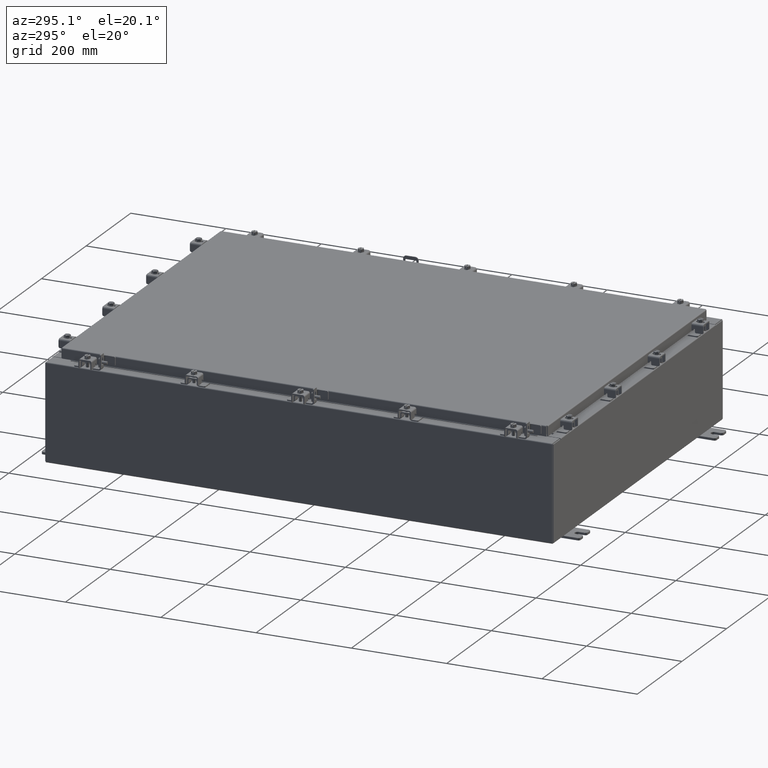
[diagram: clean part render]
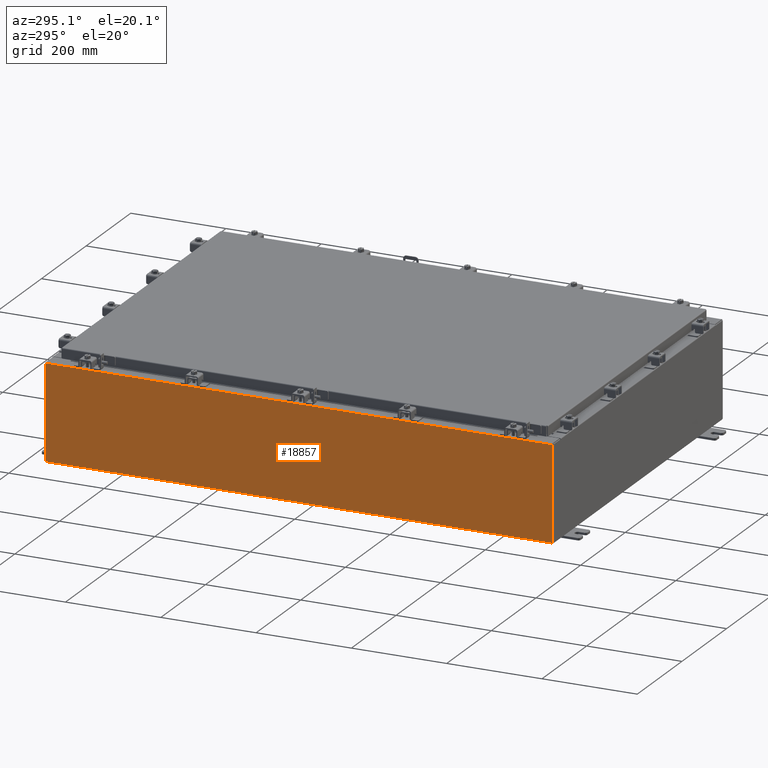
[diagram: same view with one face highlighted and labeled with its STEP entity id]
A machine part, auxiliary view. The second image highlights one B-rep face of the part: STEP entity #18857.
In plain terms, the highlighted planar face has unit normal (1, 0, 0).
Its self-contained STEP definition (entity closure, byte-faithful):
#142 = FACE_OUTER_BOUND ( 'NONE', #24469, .T. ) ;
#842 = ORIENTED_EDGE ( 'NONE', *, *, #21686, .F. ) ;
#1556 = VECTOR ( 'NONE', #2801, 39.37007874015748100 ) ;
#2446 = ORIENTED_EDGE ( 'NONE', *, *, #20738, .T. ) ;
#2730 = ORIENTED_EDGE ( 'NONE', *, *, #4179, .T. ) ;
#2801 = DIRECTION ( 'NONE',  ( 0.0000000000000000000, 1.000000000000000000, 0.0000000000000000000 ) ) ;
#3259 = CARTESIAN_POINT ( 'NONE',  ( -14.99999999999999800, -20.92529999999998600, 0.01299999999999984700 ) ) ;
#4179 = EDGE_CURVE ( 'NONE', #24232, #10203, #6911, .T. ) ;
#6911 = LINE ( 'NONE', #11517, #11355 ) ;
#8627 = VECTOR ( 'NONE', #13329, 39.37007874015748100 ) ;
#8753 = CARTESIAN_POINT ( 'NONE',  ( -14.99999999999999800, 0.0000000000000000000, -5.403395625144962100E-014 ) ) ;
#9155 = CARTESIAN_POINT ( 'NONE',  ( -15.00000000000002700, 20.92530000000000700, 7.837599999999999200 ) ) ;
#10203 = VERTEX_POINT ( 'NONE', #16707 ) ;
#10640 = DIRECTION ( 'NONE',  ( 3.584876173029202900E-015, 0.0000000000000000000, -1.000000000000000000 ) ) ;
#10777 = CARTESIAN_POINT ( 'NONE',  ( -14.99999999999999800, -20.92529999999999300, -5.403395625144962100E-014 ) ) ;
#11355 = VECTOR ( 'NONE', #19183, 39.37007874015748100 ) ;
#11517 = CARTESIAN_POINT ( 'NONE',  ( -14.99999999999999800, 20.92530000000000700, -5.403395625144962100E-014 ) ) ;
#13329 = DIRECTION ( 'NONE',  ( -0.0000000000000000000, 1.000000000000000000, -0.0000000000000000000 ) ) ;
#13589 = VECTOR ( 'NONE', #22174, 39.37007874015748100 ) ;
#14118 = CARTESIAN_POINT ( 'NONE',  ( -15.00000000000002700, -20.92529999999998900, 7.837599999999999200 ) ) ;
#14688 = EDGE_CURVE ( 'NONE', #21513, #17823, #19859, .T. ) ;
#16707 = CARTESIAN_POINT ( 'NONE',  ( -14.99999999999999800, 20.92530000000000700, 0.01299999999999983600 ) ) ;
#17823 = VERTEX_POINT ( 'NONE', #21575 ) ;
#18211 = PLANE ( 'NONE',  #20143 ) ;
#18857 = ADVANCED_FACE ( 'NONE', ( #142 ), #18211, .F. ) ;
#19183 = DIRECTION ( 'NONE',  ( 3.584876173029202900E-015, 0.0000000000000000000, -1.000000000000000000 ) ) ;
#19859 = LINE ( 'NONE', #10777, #13589 ) ;
#20143 = AXIS2_PLACEMENT_3D ( 'NONE', #8753, #22039, #10640 ) ;
#20155 = ORIENTED_EDGE ( 'NONE', *, *, #14688, .T. ) ;
#20558 = LINE ( 'NONE', #14118, #1556 ) ;
#20738 = EDGE_CURVE ( 'NONE', #17823, #24232, #20558, .T. ) ;
#21513 = VERTEX_POINT ( 'NONE', #3259 ) ;
#21575 = CARTESIAN_POINT ( 'NONE',  ( -15.00000000000002700, -20.92529999999998600, 7.837599999999999200 ) ) ;
#21686 = EDGE_CURVE ( 'NONE', #21513, #10203, #23793, .T. ) ;
#21830 = CARTESIAN_POINT ( 'NONE',  ( -14.99999999999999800, 20.92530000000000700, 0.01299999999999984700 ) ) ;
#22039 = DIRECTION ( 'NONE',  ( 1.000000000000000000, 0.0000000000000000000, 3.584876173029202900E-015 ) ) ;
#22174 = DIRECTION ( 'NONE',  ( -3.584876173029202900E-015, 0.0000000000000000000, 1.000000000000000000 ) ) ;
#23793 = LINE ( 'NONE', #21830, #8627 ) ;
#24232 = VERTEX_POINT ( 'NONE', #9155 ) ;
#24469 = EDGE_LOOP ( 'NONE', ( #2446, #2730, #842, #20155 ) ) ;